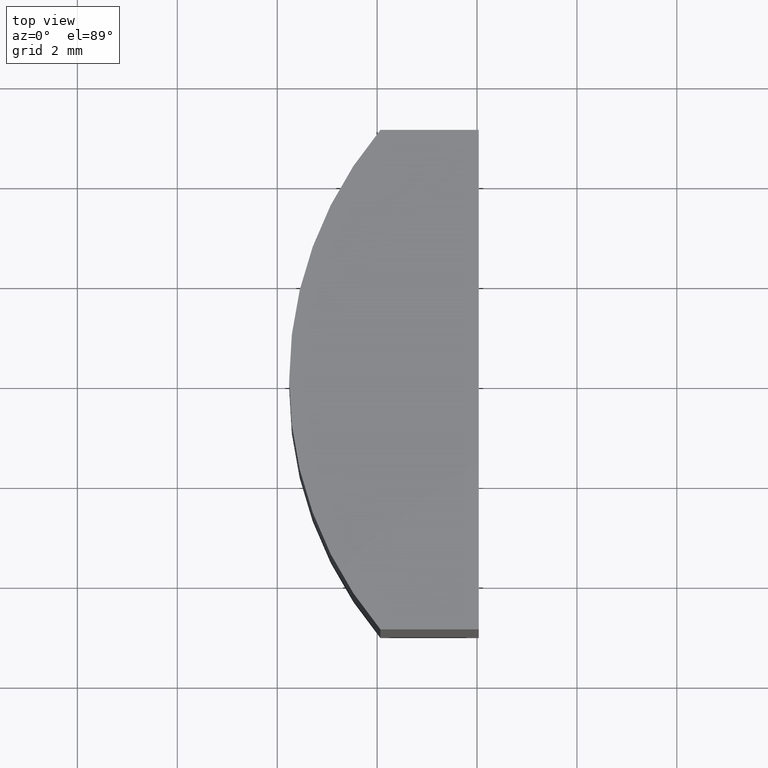
[diagram: clean part render]
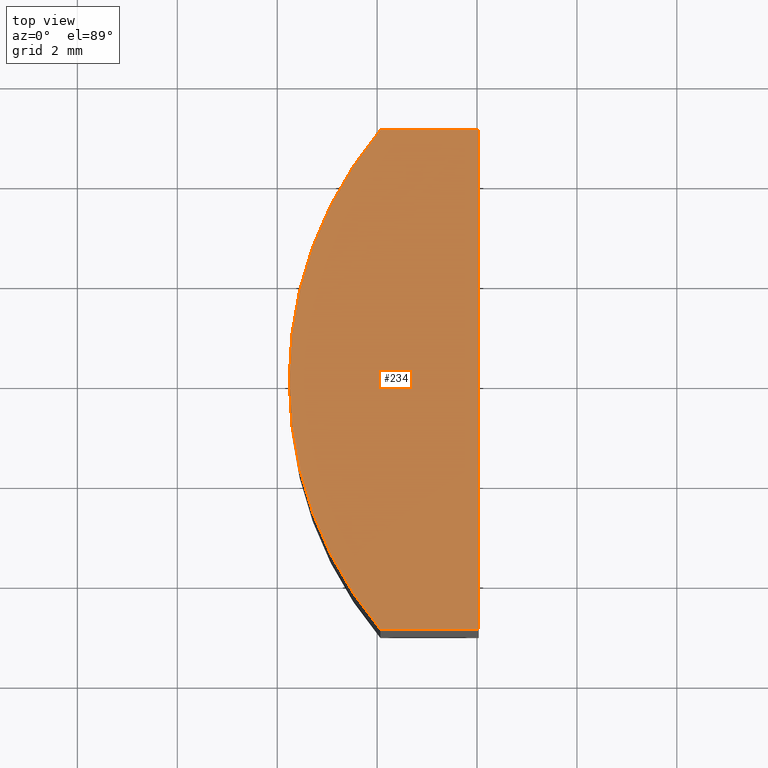
[diagram: same view with one face highlighted and labeled with its STEP entity id]
A machine part, top view. The second image highlights one B-rep face of the part: STEP entity #234.
In plain terms, the highlighted planar face has unit normal (0, 0, 1).
Its self-contained STEP definition (entity closure, byte-faithful):
#7 = CARTESIAN_POINT ( 'NONE',  ( 0.000000000000000000, 0.000000000000000000, 10.00000000000000000 ) ) ;
#8 = CIRCLE ( 'NONE', #103, 7.759999999999998899 ) ;
#9 = CARTESIAN_POINT ( 'NONE',  ( -7.759999999999998899, 0.000000000000000000, 10.00000000000000000 ) ) ;
#32 = EDGE_LOOP ( 'NONE', ( #202, #268, #109, #116, #273 ) ) ;
#33 = EDGE_CURVE ( 'NONE', #249, #243, #187, .T. ) ;
#41 = CARTESIAN_POINT ( 'NONE',  ( 0.000000000000000000, 0.000000000000000000, 10.00000000000000000 ) ) ;
#42 = CARTESIAN_POINT ( 'NONE',  ( -3.964441844015321958, 5.000000000000000000, 10.00000000000000000 ) ) ;
#50 = VECTOR ( 'NONE', #231, 1000.000000000000000 ) ;
#54 = AXIS2_PLACEMENT_3D ( 'NONE', #7, #233, #235 ) ;
#56 = CARTESIAN_POINT ( 'NONE',  ( 0.000000000000000000, 0.000000000000000000, 10.00000000000000000 ) ) ;
#58 = EDGE_CURVE ( 'NONE', #157, #271, #8, .T. ) ;
#59 = DIRECTION ( 'NONE',  ( 0.000000000000000000, 0.000000000000000000, 1.000000000000000000 ) ) ;
#61 = CARTESIAN_POINT ( 'NONE',  ( -5.934441844015322154, -5.000000000000000000, 10.00000000000000000 ) ) ;
#62 = DIRECTION ( 'NONE',  ( 1.000000000000000000, 0.000000000000000000, -0.000000000000000000 ) ) ;
#73 = CARTESIAN_POINT ( 'NONE',  ( -3.964441844015321958, 5.000000000000000000, 10.00000000000000000 ) ) ;
#78 = CARTESIAN_POINT ( 'NONE',  ( -3.964441844015321958, -5.000000000000000000, 10.00000000000000000 ) ) ;
#84 = EDGE_CURVE ( 'NONE', #271, #249, #163, .T. ) ;
#92 = EDGE_CURVE ( 'NONE', #243, #179, #226, .T. ) ;
#93 = CIRCLE ( 'NONE', #54, 7.759999999999998899 ) ;
#99 = FACE_OUTER_BOUND ( 'NONE', #32, .T. ) ;
#103 = AXIS2_PLACEMENT_3D ( 'NONE', #56, #59, #140 ) ;
#109 = ORIENTED_EDGE ( 'NONE', *, *, #84, .T. ) ;
#116 = ORIENTED_EDGE ( 'NONE', *, *, #33, .T. ) ;
#119 = DIRECTION ( 'NONE',  ( -0.000000000000000000, 1.000000000000000000, -0.000000000000000000 ) ) ;
#137 = CARTESIAN_POINT ( 'NONE',  ( -5.934441844015322154, 5.000000000000000000, 10.00000000000000000 ) ) ;
#140 = DIRECTION ( 'NONE',  ( 1.000000000000000000, 0.000000000000000000, 0.000000000000000000 ) ) ;
#157 = VERTEX_POINT ( 'NONE', #9 ) ;
#162 = CARTESIAN_POINT ( 'NONE',  ( -5.934441844015322154, -5.000000000000000000, 10.00000000000000000 ) ) ;
#163 = LINE ( 'NONE', #162, #50 ) ;
#179 = VERTEX_POINT ( 'NONE', #227 ) ;
#186 = DIRECTION ( 'NONE',  ( -1.000000000000000000, -0.000000000000000000, -0.000000000000000000 ) ) ;
#187 = LINE ( 'NONE', #73, #225 ) ;
#193 = PLANE ( 'NONE',  #211 ) ;
#194 = EDGE_CURVE ( 'NONE', #179, #157, #93, .T. ) ;
#202 = ORIENTED_EDGE ( 'NONE', *, *, #194, .T. ) ;
#211 = AXIS2_PLACEMENT_3D ( 'NONE', #41, #256, #62 ) ;
#216 = VECTOR ( 'NONE', #186, 1000.000000000000000 ) ;
#225 = VECTOR ( 'NONE', #119, 1000.000000000000000 ) ;
#226 = LINE ( 'NONE', #137, #216 ) ;
#227 = CARTESIAN_POINT ( 'NONE',  ( -5.934441844015322154, 5.000000000000000000, 10.00000000000000000 ) ) ;
#231 = DIRECTION ( 'NONE',  ( 1.000000000000000000, 0.000000000000000000, 0.000000000000000000 ) ) ;
#233 = DIRECTION ( 'NONE',  ( 0.000000000000000000, 0.000000000000000000, 1.000000000000000000 ) ) ;
#234 = ADVANCED_FACE ( 'NONE', ( #99 ), #193, .T. ) ;
#235 = DIRECTION ( 'NONE',  ( 1.000000000000000000, 0.000000000000000000, 0.000000000000000000 ) ) ;
#243 = VERTEX_POINT ( 'NONE', #42 ) ;
#249 = VERTEX_POINT ( 'NONE', #78 ) ;
#256 = DIRECTION ( 'NONE',  ( 0.000000000000000000, 0.000000000000000000, 1.000000000000000000 ) ) ;
#268 = ORIENTED_EDGE ( 'NONE', *, *, #58, .T. ) ;
#271 = VERTEX_POINT ( 'NONE', #61 ) ;
#273 = ORIENTED_EDGE ( 'NONE', *, *, #92, .T. ) ;